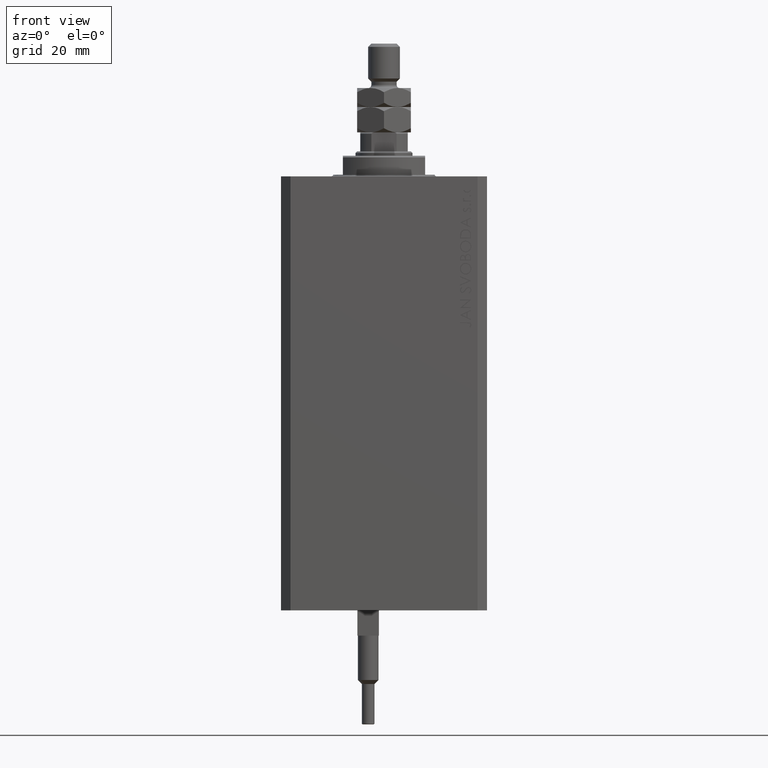
[diagram: clean part render]
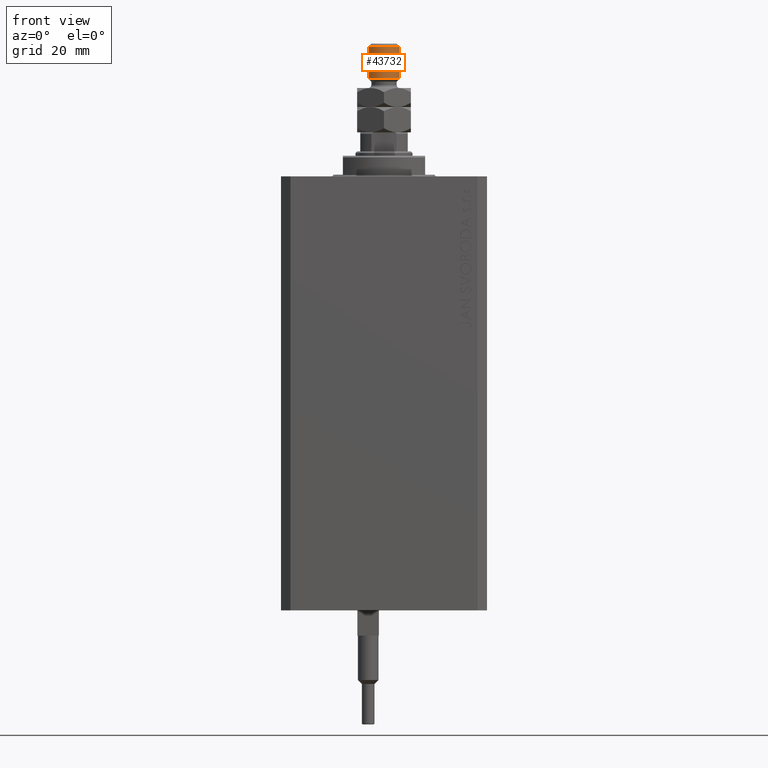
[diagram: same view with one face highlighted and labeled with its STEP entity id]
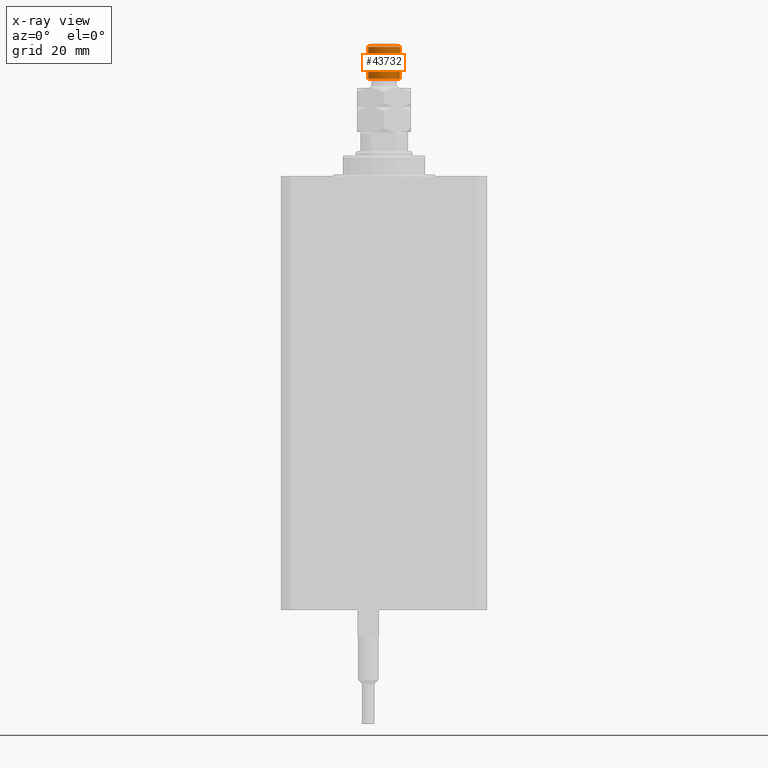
[diagram: x-ray of the same camera — body ghosted, the highlighted face saturated]
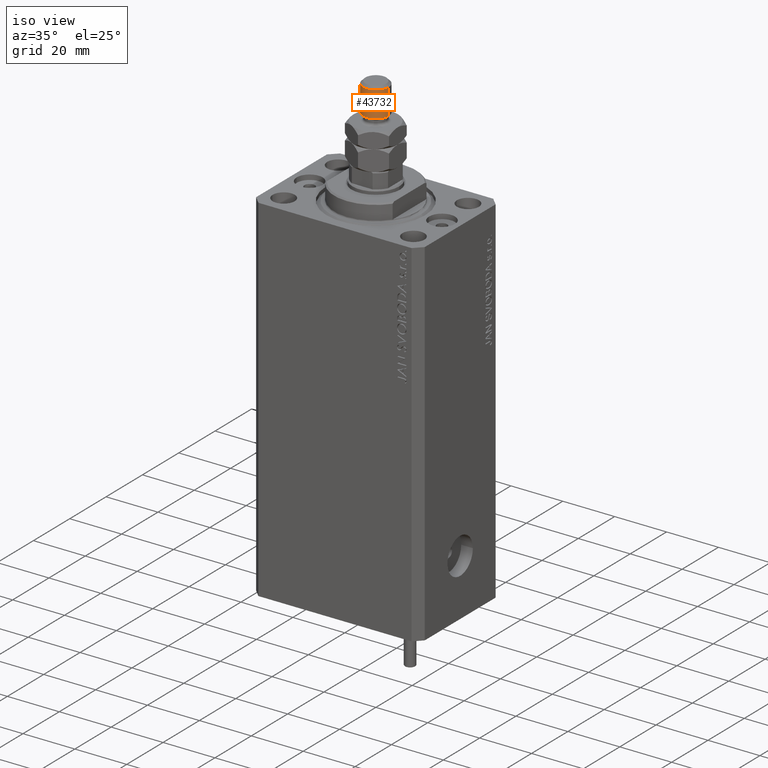
[diagram: same view with one face highlighted and labeled with its STEP entity id]
A machine part, front view. The second image highlights one B-rep face of the part: STEP entity #43732.
The next image is the same camera in x-ray: the body ghosted, the highlighted face saturated — about 0% of this face is hidden behind the body in this view.
A second angle (iso view) of the same face is appended — the face is thin or edge-on in the first view.
In plain terms, the highlighted cylindrical surface (edge-blend (fillet) strip) has radius 5 mm, axis along (-0, -0, -1).
Its self-contained STEP definition (entity closure, byte-faithful):
#779 = ORIENTED_EDGE ( 'NONE', *, *, #33562, .F. ) ;
#4799 = VERTEX_POINT ( 'NONE', #27520 ) ;
#5898 = EDGE_LOOP ( 'NONE', ( #779, #33910, #45857, #35295 ) ) ;
#6154 = DIRECTION ( 'NONE',  ( 1.000000000000000000, 0.000000000000000000, 0.000000000000000000 ) ) ;
#7524 = CYLINDRICAL_SURFACE ( 'NONE', #34611, 5.000000000000000000 ) ;
#11243 = CARTESIAN_POINT ( 'NONE',  ( 5.000000000000000000, 6.123233995736766282E-16, 28.00000000000000000 ) ) ;
#11772 = CARTESIAN_POINT ( 'NONE',  ( 0.000000000000000000, 0.000000000000000000, 28.00000000000000000 ) ) ;
#11921 = EDGE_CURVE ( 'NONE', #48764, #36096, #13685, .T. ) ;
#13460 = CARTESIAN_POINT ( 'NONE',  ( -5.000000000000000000, 0.000000000000000000, 26.99999999999998934 ) ) ;
#13685 = CIRCLE ( 'NONE', #31271, 5.000000000000000000 ) ;
#14794 = EDGE_CURVE ( 'NONE', #36096, #4799, #24677, .T. ) ;
#19546 = DIRECTION ( 'NONE',  ( -0.000000000000000000, -0.000000000000000000, -1.000000000000000000 ) ) ;
#24391 = DIRECTION ( 'NONE',  ( 1.000000000000000000, 0.000000000000000000, 0.000000000000000000 ) ) ;
#24608 = CARTESIAN_POINT ( 'NONE',  ( 5.000000000000000000, 6.123233995736766282E-16, 17.00000000000000355 ) ) ;
#24677 = LINE ( 'NONE', #32433, #48270 ) ;
#27520 = CARTESIAN_POINT ( 'NONE',  ( -5.000000000000000000, 0.000000000000000000, 17.00000000000000355 ) ) ;
#28891 = DIRECTION ( 'NONE',  ( -0.000000000000000000, -0.000000000000000000, 1.000000000000000000 ) ) ;
#28937 = DIRECTION ( 'NONE',  ( 0.000000000000000000, 0.000000000000000000, -1.000000000000000000 ) ) ;
#31271 = AXIS2_PLACEMENT_3D ( 'NONE', #40228, #28937, #6154 ) ;
#31472 = CIRCLE ( 'NONE', #33064, 5.000000000000000000 ) ;
#32433 = CARTESIAN_POINT ( 'NONE',  ( -5.000000000000000000, 0.000000000000000000, 28.00000000000000000 ) ) ;
#33064 = AXIS2_PLACEMENT_3D ( 'NONE', #43690, #28891, #24391 ) ;
#33562 = EDGE_CURVE ( 'NONE', #48764, #35389, #34046, .T. ) ;
#33910 = ORIENTED_EDGE ( 'NONE', *, *, #11921, .T. ) ;
#34046 = LINE ( 'NONE', #11243, #39870 ) ;
#34611 = AXIS2_PLACEMENT_3D ( 'NONE', #11772, #19546, #46355 ) ;
#35295 = ORIENTED_EDGE ( 'NONE', *, *, #48948, .T. ) ;
#35389 = VERTEX_POINT ( 'NONE', #24608 ) ;
#36096 = VERTEX_POINT ( 'NONE', #13460 ) ;
#39870 = VECTOR ( 'NONE', #45589, 1000.000000000000000 ) ;
#40228 = CARTESIAN_POINT ( 'NONE',  ( 0.000000000000000000, 0.000000000000000000, 26.99999999999998934 ) ) ;
#43690 = CARTESIAN_POINT ( 'NONE',  ( 0.000000000000000000, 0.000000000000000000, 17.00000000000000355 ) ) ;
#43732 = ADVANCED_FACE ( 'NONE', ( #46114 ), #7524, .T. ) ;
#45589 = DIRECTION ( 'NONE',  ( -0.000000000000000000, -0.000000000000000000, -1.000000000000000000 ) ) ;
#45857 = ORIENTED_EDGE ( 'NONE', *, *, #14794, .T. ) ;
#45993 = CARTESIAN_POINT ( 'NONE',  ( 5.000000000000000000, 6.123233995736766282E-16, 26.99999999999998934 ) ) ;
#46114 = FACE_OUTER_BOUND ( 'NONE', #5898, .T. ) ;
#46355 = DIRECTION ( 'NONE',  ( -1.000000000000000000, 0.000000000000000000, 0.000000000000000000 ) ) ;
#47743 = DIRECTION ( 'NONE',  ( -0.000000000000000000, -0.000000000000000000, -1.000000000000000000 ) ) ;
#48270 = VECTOR ( 'NONE', #47743, 1000.000000000000000 ) ;
#48764 = VERTEX_POINT ( 'NONE', #45993 ) ;
#48948 = EDGE_CURVE ( 'NONE', #4799, #35389, #31472, .T. ) ;